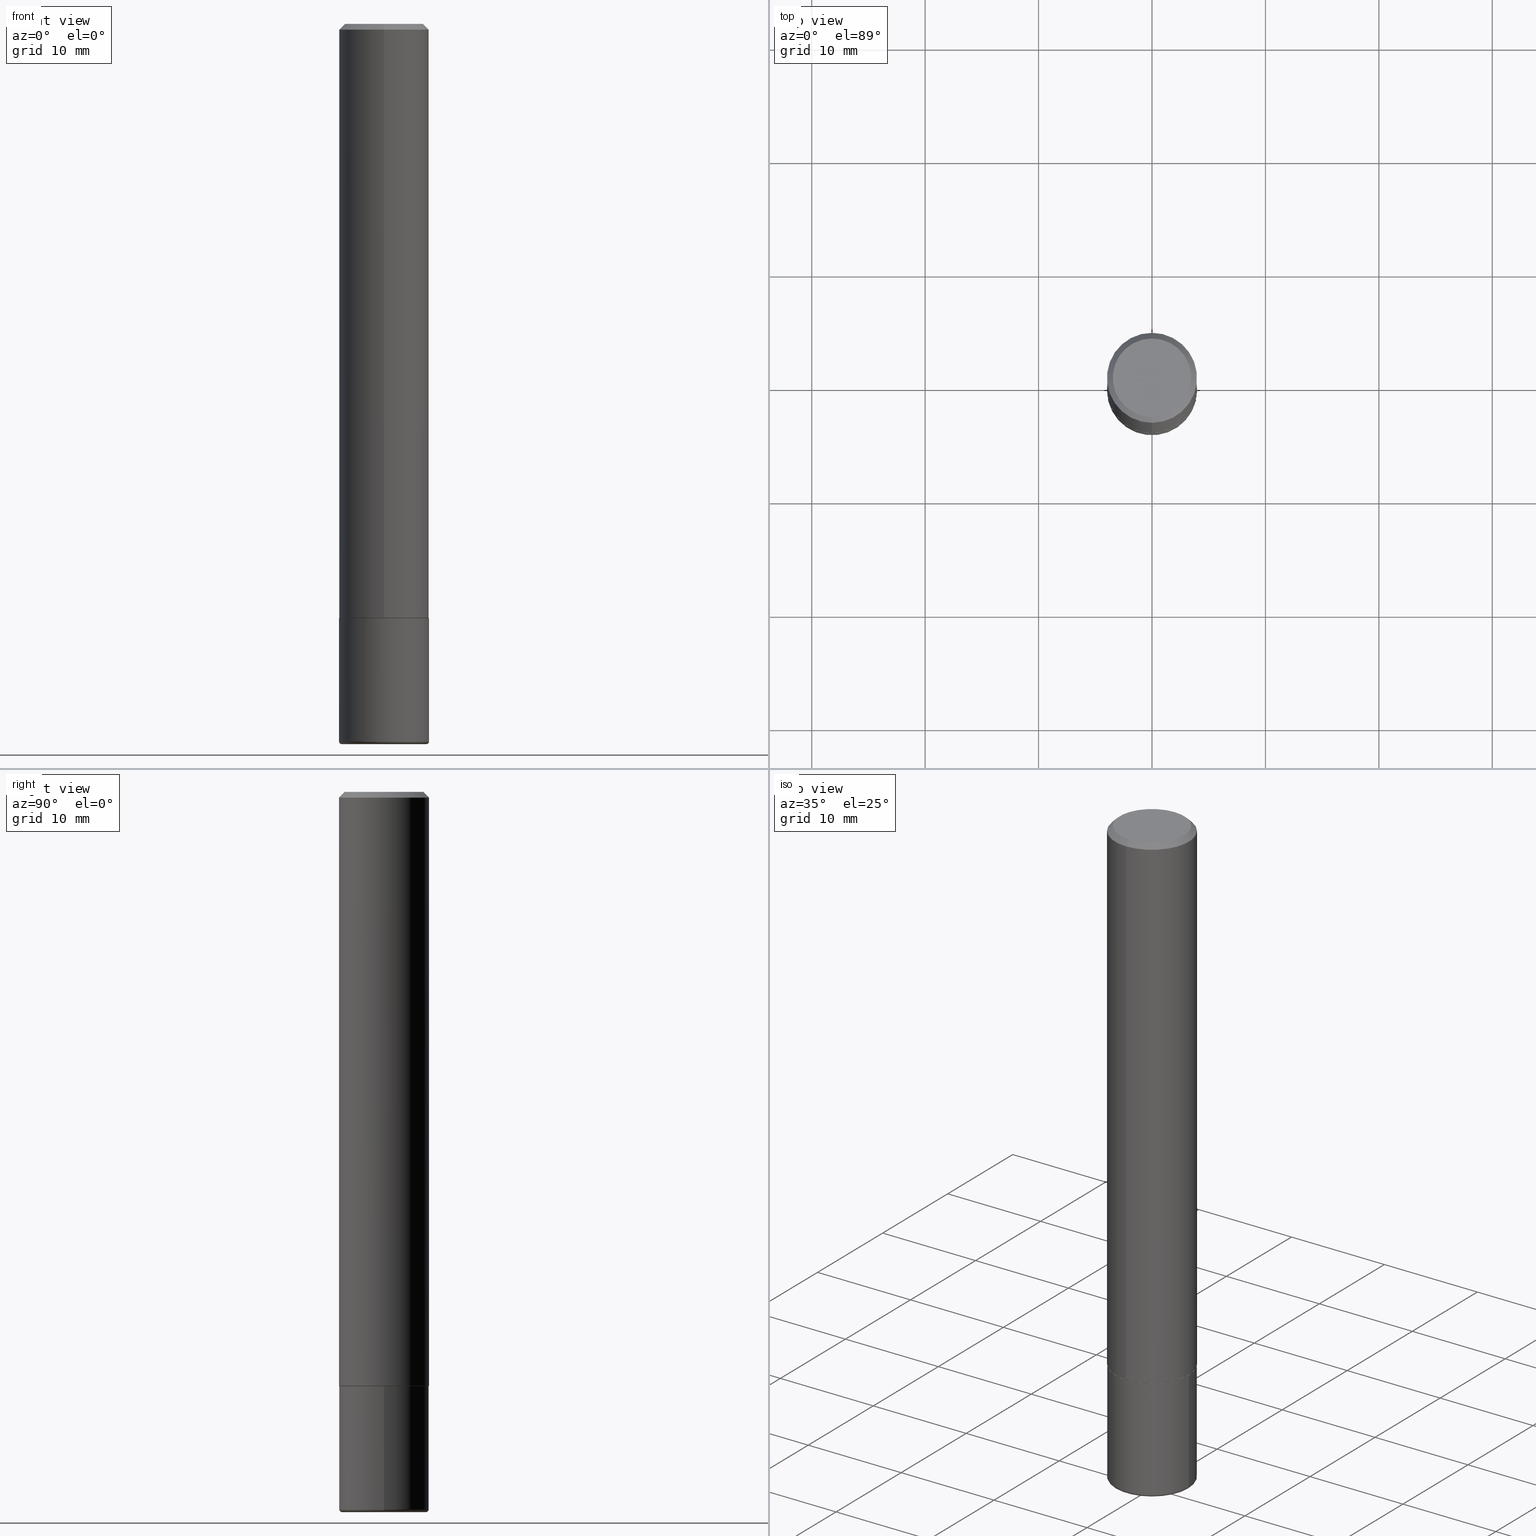
[diagram: canonical four-view strip — front | top / right | iso, engineering-drawing reading convention]
A machine part, canonical four-view strip (front | top / right | iso — engineering-drawing reading convention). The complete STEP part file that produces these views, byte-faithful:
ISO-10303-21;
HEADER;
FILE_DESCRIPTION (( 'STEP AP203' ),
    '1' );
FILE_NAME ('38798.STEP',
    '2024-03-03T13:20:27',
    ( '' ),
    ( '' ),
    'SwSTEP 2.0',
    'SolidWorks 2023',
    '' );
FILE_SCHEMA (( 'CONFIG_CONTROL_DESIGN' ));
ENDSEC;

DATA;
#1 = CC_DESIGN_PERSON_AND_ORGANIZATION_ASSIGNMENT ( #112, #179, ( #232 ) ) ;
#2 = AXIS2_PLACEMENT_3D ( 'NONE', #417, #358, #94 ) ;
#3 = DIRECTION ( 'NONE',  ( -2.446018690506352373E-29, 3.490693873197692271E-15, 1.000000000000000000 ) ) ;
#4 = ADVANCED_FACE ( 'NONE', ( #355 ), #65, .F. ) ;
#5 = EDGE_CURVE ( 'NONE', #220, #170, #373, .T. ) ;
#6 = DIRECTION ( 'NONE',  ( -2.446018690506352654E-29, 3.490693873197692271E-15, 1.000000000000000000 ) ) ;
#7 = APPLICATION_CONTEXT ( 'configuration controlled 3d designs of mechanical parts and assemblies' ) ;
#8 = FACE_OUTER_BOUND ( 'NONE', #368, .T. ) ;
#9 = DIRECTION ( 'NONE',  ( 4.937700262164542520E-15, 0.7071067811865443531, -0.7071067811865506814 ) ) ;
#10 = CIRCLE ( 'NONE', #242, 0.009999999999999790307 ) ;
#11 = AXIS2_PLACEMENT_3D ( 'NONE', #48, #378, #22 ) ;
#12 = DIRECTION ( 'NONE',  ( 2.446018690506352654E-29, -3.490693873197692271E-15, -1.000000000000000000 ) ) ;
#13 = VERTEX_POINT ( 'NONE', #221 ) ;
#14 = ORIENTED_EDGE ( 'NONE', *, *, #351, .F. ) ;
#15 = EDGE_CURVE ( 'NONE', #170, #217, #10, .T. ) ;
#16 = CC_DESIGN_APPROVAL ( #354, ( #232 ) ) ;
#17 = VERTEX_POINT ( 'NONE', #290 ) ;
#18 = AXIS2_PLACEMENT_3D ( 'NONE', #178, #280, #88 ) ;
#19 = ORIENTED_EDGE ( 'NONE', *, *, #187, .F. ) ;
#20 = CARTESIAN_POINT ( 'NONE',  ( 5.044913549169352611E-29, -7.199556113470241419E-15, -2.062500000000000000 ) ) ;
#21 = DIRECTION ( 'NONE',  ( -2.445468806185136597E-29, 3.491481338843145583E-15, 1.000000000000000000 ) ) ;
#22 = DIRECTION ( 'NONE',  ( 1.000000000000000000, -6.982962677686265922E-15, 4.883557194083112340E-29 ) ) ;
#23 = COORDINATED_UNIVERSAL_TIME_OFFSET ( 5, 0, .BEHIND. ) ;
#24 = CARTESIAN_POINT ( 'NONE',  ( -0.1562500000000000000, 1.110223024625156540E-15, -7.685836078523291160E-30 ) ) ;
#25 = CC_DESIGN_DATE_AND_TIME_ASSIGNMENT ( #267, #106, ( #366 ) ) ;
#26 = ORIENTED_EDGE ( 'NONE', *, *, #262, .F. ) ;
#27 = DIRECTION ( 'NONE',  ( 1.000000000000000000, -6.982962677686266711E-15, 4.876176775795936353E-29 ) ) ;
#28 = PERSON ( 'UNSPECIFIED', 'UNSPECIFIED', 'UNSPECIFIED', ('UNSPECIFIED'), ('UNSPECIFIED'), ('UNSPECIFIED') ) ;
#29 = CIRCLE ( 'NONE', #231, 0.1562500000000002498 ) ;
#30 = DIRECTION ( 'NONE',  ( 7.105427357601001859E-15, 1.000000000000000000, -3.491481338843145583E-15 ) ) ;
#31 = CARTESIAN_POINT ( 'NONE',  ( 1.091087918388479765E-15, 0.1562499999999999722, -0.02000000000000057981 ) ) ;
#32 = EDGE_CURVE ( 'NONE', #17, #387, #66, .T. ) ;
#33 = LENGTH_MEASURE_WITH_UNIT ( LENGTH_MEASURE( 0.02539999999999999897 ), #75 );
#34 = CARTESIAN_POINT ( 'NONE',  ( 5.042467530478845729E-29, -7.196065419597043772E-15, -2.061500000000000110 ) ) ;
#35 = CARTESIAN_POINT ( 'NONE',  ( 6.089217327400989947E-29, -8.693788533719431716E-15, -2.489999999999999769 ) ) ;
#36 = APPROVAL ( #261, 'UNSPECIFIED' ) ;
#37 = PERSON_AND_ORGANIZATION ( #28, #39 ) ;
#38 = DIRECTION ( 'NONE',  ( 2.446018690506352373E-29, -3.490693873197692271E-15, -1.000000000000000000 ) ) ;
#39 = ORGANIZATION ( 'UNSPECIFIED', 'UNSPECIFIED', '' ) ;
#40 = DESIGN_CONTEXT ( 'detailed design', #71, 'design' ) ;
#41 = MANIFOLD_SOLID_BREP ( 'Body-Move/Copy2[1]', #99 ) ;
#42 = AXIS2_PLACEMENT_3D ( 'NONE', #141, #276, #344 ) ;
#43 = CARTESIAN_POINT ( 'NONE',  ( -0.1562500000000000000, -6.837261372916553606E-15, -2.062500000000000000 ) ) ;
#44 = EDGE_CURVE ( 'NONE', #83, #370, #68, .T. ) ;
#45 = ORIENTED_EDGE ( 'NONE', *, *, #332, .T. ) ;
#46 = VERTEX_POINT ( 'NONE', #78 ) ;
#47 = DIRECTION ( 'NONE',  ( -6.982962677686266711E-15, -1.000000000000000000, 3.496765431890256131E-15 ) ) ;
#48 = CARTESIAN_POINT ( 'NONE',  ( 6.089217327400989947E-29, -8.693788533719431716E-15, -2.489999999999999769 ) ) ;
#49 = CARTESIAN_POINT ( 'NONE',  ( -0.1462500000000000189, -7.636550052576496041E-15, -2.499999999999999556 ) ) ;
#50 = CONICAL_SURFACE ( 'NONE', #76, 0.1552499999999999991, 0.7853981633975336552 ) ;
#51 = EDGE_LOOP ( 'NONE', ( #410, #345, #171, #321 ) ) ;
#52 = FACE_OUTER_BOUND ( 'NONE', #119, .T. ) ;
#53 = APPLICATION_PROTOCOL_DEFINITION ( 'international standard', 'config_control_design', 1994, #7 ) ;
#54 = VERTEX_POINT ( 'NONE', #331 ) ;
#55 = CARTESIAN_POINT ( 'NONE',  ( 5.043779412756844791E-29, -7.201180261363988578E-15, -2.062500000000000000 ) ) ;
#56 = ORIENTED_EDGE ( 'NONE', *, *, #351, .T. ) ;
#57 = DIRECTION ( 'NONE',  ( -2.445468806185136877E-29, 3.491481338843145188E-15, 1.000000000000000000 ) ) ;
#58 = APPROVAL ( #329, 'UNSPECIFIED' ) ;
#59 = CIRCLE ( 'NONE', #293, 0.1562500000000000000 ) ;
#60 = APPROVAL_PERSON_ORGANIZATION ( #121, #354, #379 ) ;
#61 = ORIENTED_EDGE ( 'NONE', *, *, #150, .F. ) ;
#62 = CALENDAR_DATE ( 2024, 3, 3 ) ;
#63 = VERTEX_POINT ( 'NONE', #43 ) ;
#64 = DIRECTION ( 'NONE',  ( -6.982962677686266711E-15, -1.000000000000000000, 3.490693873197693060E-15 ) ) ;
#65 = PLANE ( 'NONE',  #342 ) ;
#66 = CIRCLE ( 'NONE', #2, 0.1362500000000000377 ) ;
#67 = CONICAL_SURFACE ( 'NONE', #384, 0.1562500000000000278, 0.7853981633974472798 ) ;
#68 = LINE ( 'NONE', #103, #114 ) ;
#69 = DIRECTION ( 'NONE',  ( -6.982962677686265922E-15, -1.000000000000000000, 3.496765431890251398E-15 ) ) ;
#70 = CARTESIAN_POINT ( 'NONE',  ( 1.091087918388479765E-15, 0.1562499999999999722, -0.02000000000000057981 ) ) ;
#71 = APPLICATION_CONTEXT ( 'configuration controlled 3d designs of mechanical parts and assemblies' ) ;
#72 = AXIS2_PLACEMENT_3D ( 'NONE', #371, #6, #64 ) ;
#73 = ORIENTED_EDGE ( 'NONE', *, *, #326, .T. ) ;
#74 = DIRECTION ( 'NONE',  ( -2.446018690506352654E-29, 3.490693873197692271E-15, 1.000000000000000000 ) ) ;
#75 =( LENGTH_UNIT ( ) NAMED_UNIT ( * ) SI_UNIT ( $, .METRE. ) );
#76 = AXIS2_PLACEMENT_3D ( 'NONE', #20, #208, #346 ) ;
#77 = ORIENTED_EDGE ( 'NONE', *, *, #118, .F. ) ;
#78 = CARTESIAN_POINT ( 'NONE',  ( -1.071952812151801412E-15, -0.1562500000000001110, -0.01999999999999948694 ) ) ;
#79 = EDGE_CURVE ( 'NONE', #13, #134, #203, .T. ) ;
#80 = DIRECTION ( 'NONE',  ( -6.982962677686265922E-15, -1.000000000000000000, 3.490693873197692271E-15 ) ) ;
#81 = ORIENTED_EDGE ( 'NONE', *, *, #118, .T. ) ;
#82 = FACE_OUTER_BOUND ( 'NONE', #108, .T. ) ;
#83 = VERTEX_POINT ( 'NONE', #303 ) ;
#84 = DIRECTION ( 'NONE',  ( -2.446018690506352654E-29, 3.490693873197692271E-15, 1.000000000000000000 ) ) ;
#85 = CIRCLE ( 'NONE', #191, 0.1562500000000000000 ) ;
#86 = DIRECTION ( 'NONE',  ( -2.446018690506352654E-29, 3.490693873197692271E-15, 1.000000000000000000 ) ) ;
#87 = CYLINDRICAL_SURFACE ( 'NONE', #100, 0.1562500000000000000 ) ;
#88 = DIRECTION ( 'NONE',  ( 6.982962677686266711E-15, 1.000000000000000000, -3.496765431890256131E-15 ) ) ;
#89 = CARTESIAN_POINT ( 'NONE',  ( 5.044913549169352611E-29, -7.199556113470241419E-15, -2.062500000000000000 ) ) ;
#90 = EDGE_LOOP ( 'NONE', ( #137, #186, #416, #202 ) ) ;
#91 = AXIS2_PLACEMENT_3D ( 'NONE', #245, #284, #372 ) ;
#92 = ORIENTED_EDGE ( 'NONE', *, *, #44, .T. ) ;
#93 = ORIENTED_EDGE ( 'NONE', *, *, #187, .T. ) ;
#94 = DIRECTION ( 'NONE',  ( -6.982962677686266711E-15, -1.000000000000000000, 3.490693873197693060E-15 ) ) ;
#95 = AXIS2_PLACEMENT_3D ( 'NONE', #35, #128, #230 ) ;
#96 = PRODUCT_RELATED_PRODUCT_CATEGORY ( 'detail', '', ( #211 ) ) ;
#97 = PLANE ( 'NONE',  #359 ) ;
#98 = EDGE_CURVE ( 'NONE', #63, #54, #59, .T. ) ;
#99 = CLOSED_SHELL ( 'NONE', ( #237, #149, #4, #246, #356, #224 ) ) ;
#100 = AXIS2_PLACEMENT_3D ( 'NONE', #283, #382, #27 ) ;
#101 = PLANE ( 'NONE',  #271 ) ;
#102 = PRODUCT_DEFINITION_SHAPE ( 'NONE', 'NONE',  #409 ) ;
#103 = CARTESIAN_POINT ( 'NONE',  ( -1.084104955710742475E-15, -0.1552500000000072156, -2.062499999999999556 ) ) ;
#104 = CC_DESIGN_PERSON_AND_ORGANIZATION_ASSIGNMENT ( #398, #275, ( #232 ) ) ;
#105 = PERSON_AND_ORGANIZATION ( #28, #39 ) ;
#106 = DATE_TIME_ROLE ( 'classification_date' ) ;
#107 =( NAMED_UNIT ( * ) PLANE_ANGLE_UNIT ( ) SI_UNIT ( $, .RADIAN. ) );
#108 = EDGE_LOOP ( 'NONE', ( #212, #239 ) ) ;
#109 = SECURITY_CLASSIFICATION_LEVEL ( 'unclassified' ) ;
#110 = CARTESIAN_POINT ( 'NONE',  ( -1.091087918388479962E-15, -0.1562500000000001388, 5.454209176871399228E-16 ) ) ;
#111 = ADVANCED_FACE ( 'NONE', ( #148 ), #126, .T. ) ;
#112 = PERSON_AND_ORGANIZATION ( #28, #39 ) ;
#113 = ORIENTED_EDGE ( 'NONE', *, *, #392, .F. ) ;
#114 = VECTOR ( 'NONE', #363, 39.37007874015748143 ) ;
#115 = APPROVAL_STATUS ( 'not_yet_approved' ) ;
#116 = ORIENTED_EDGE ( 'NONE', *, *, #5, .T. ) ;
#117 = ORIENTED_EDGE ( 'NONE', *, *, #341, .T. ) ;
#118 = EDGE_CURVE ( 'NONE', #312, #217, #181, .T. ) ;
#119 = EDGE_LOOP ( 'NONE', ( #348, #249, #117, #352 ) ) ;
#120 = AXIS2_PLACEMENT_3D ( 'NONE', #34, #260, #158 ) ;
#121 = PERSON_AND_ORGANIZATION ( #28, #39 ) ;
#122 = CIRCLE ( 'NONE', #265, 0.1562500000000000278 ) ;
#123 = APPROVAL_PERSON_ORGANIZATION ( #198, #58, #250 ) ;
#124 = EDGE_LOOP ( 'NONE', ( #81, #147, #14, #176 ) ) ;
#125 = DIRECTION ( 'NONE',  ( -6.982962677686265922E-15, -1.000000000000000000, 3.519288880726909138E-15 ) ) ;
#126 = CONICAL_SURFACE ( 'NONE', #390, 0.1552499999999999991, 0.7853981633975336552 ) ;
#127 = CC_DESIGN_APPROVAL ( #58, ( #366 ) ) ;
#128 = DIRECTION ( 'NONE',  ( -2.445468806185136597E-29, 3.491481338843145583E-15, 1.000000000000000000 ) ) ;
#129 = PERSON_AND_ORGANIZATION ( #28, #39 ) ;
#130 = CARTESIAN_POINT ( 'NONE',  ( 9.514286648347541549E-16, 0.1362500000000000377, -4.756606863202822775E-16 ) ) ;
#131 = DIRECTION ( 'NONE',  ( 2.438088387897960049E-29, -3.491481338843145188E-15, -1.000000000000000000 ) ) ;
#132 = CARTESIAN_POINT ( 'NONE',  ( 6.113672015462840371E-29, -8.728703347107863365E-15, -2.499999999999999556 ) ) ;
#133 = ADVANCED_FACE ( 'NONE', ( #292 ), #97, .F. ) ;
#134 = VERTEX_POINT ( 'NONE', #70 ) ;
#135 = CARTESIAN_POINT ( 'NONE',  ( 1.110223024625157329E-15, 0.1562500000000001388, -5.454209176871399228E-16 ) ) ;
#136 = CC_DESIGN_PERSON_AND_ORGANIZATION_ASSIGNMENT ( #37, #296, ( #211 ) ) ;
#137 = ORIENTED_EDGE ( 'NONE', *, *, #393, .T. ) ;
#138 = CC_DESIGN_PERSON_AND_ORGANIZATION_ASSIGNMENT ( #238, #375, ( #366 ) ) ;
#139 = ORIENTED_EDGE ( 'NONE', *, *, #263, .T. ) ;
#140 = EDGE_CURVE ( 'NONE', #17, #46, #194, .T. ) ;
#141 = CARTESIAN_POINT ( 'NONE',  ( 6.089217327400989947E-29, -8.693788533719431716E-15, -2.489999999999999769 ) ) ;
#142 = PERSON_AND_ORGANIZATION_ROLE ( 'creator' ) ;
#143 = DIRECTION ( 'NONE',  ( 2.438088387897960049E-29, -3.491481338843145188E-15, -1.000000000000000000 ) ) ;
#144 = DIRECTION ( 'NONE',  ( -2.446018690506352654E-29, 3.490693873197692271E-15, 1.000000000000000000 ) ) ;
#145 = ORIENTED_EDGE ( 'NONE', *, *, #32, .T. ) ;
#146 = DIRECTION ( 'NONE',  ( 1.000000000000000000, -6.982962677686269077E-15, 0.000000000000000000 ) ) ;
#147 = ORIENTED_EDGE ( 'NONE', *, *, #262, .T. ) ;
#148 = FACE_OUTER_BOUND ( 'NONE', #247, .T. ) ;
#149 = ADVANCED_FACE ( 'NONE', ( #8 ), #253, .T. ) ;
#150 = EDGE_CURVE ( 'NONE', #287, #83, #322, .T. ) ;
#151 = EDGE_CURVE ( 'NONE', #13, #370, #29, .T. ) ;
#152 = ORIENTED_EDGE ( 'NONE', *, *, #15, .T. ) ;
#153 = CARTESIAN_POINT ( 'NONE',  ( 6.089217327400989947E-29, -8.693788533719431716E-15, -2.489999999999999769 ) ) ;
#154 = AXIS2_PLACEMENT_3D ( 'NONE', #132, #337, #307 ) ;
#155 = LOCAL_TIME ( 8, 20, 27.00000000000000000, #264 ) ;
#156 = DIRECTION ( 'NONE',  ( -1.000000000000000000, 7.105427357600978193E-15, 0.000000000000000000 ) ) ;
#157 = DATE_AND_TIME ( #62, #294 ) ;
#158 = DIRECTION ( 'NONE',  ( -6.982962677686265922E-15, -1.000000000000000000, 3.496765431890251398E-15 ) ) ;
#159 = APPLICATION_PROTOCOL_DEFINITION ( 'international standard', 'config_control_design', 1994, #71 ) ;
#160 = DIRECTION ( 'NONE',  ( 6.982962677686265922E-15, 1.000000000000000000, -3.490693873197692271E-15 ) ) ;
#161 = AXIS2_PLACEMENT_3D ( 'NONE', #182, #185, #349 ) ;
#162 = DIRECTION ( 'NONE',  ( -4.851104656540958753E-15, -0.7071067811865492381, -0.7071067811865457964 ) ) ;
#163 = DIRECTION ( 'NONE',  ( 5.024295867788490741E-15, 0.7071067811866103003, 0.7071067811864847341 ) ) ;
#164 = CIRCLE ( 'NONE', #400, 0.1562500000000000278 ) ;
#165 = AXIS2_PLACEMENT_3D ( 'NONE', #192, #257, #125 ) ;
#166 = ORIENTED_EDGE ( 'NONE', *, *, #140, .F. ) ;
#167 = CARTESIAN_POINT ( 'NONE',  ( 0.1462500000000000189, -9.749961638719478451E-15, -2.499999999999999556 ) ) ;
#168 = APPROVAL_DATE_TIME ( #196, #36 ) ;
#169 =( NAMED_UNIT ( * ) SI_UNIT ( $, .STERADIAN. ) SOLID_ANGLE_UNIT ( ) );
#170 = VERTEX_POINT ( 'NONE', #49 ) ;
#171 = ORIENTED_EDGE ( 'NONE', *, *, #251, .T. ) ;
#172 = CARTESIAN_POINT ( 'NONE',  ( 1.103117597267605822E-15, 0.1552499999999928104, -2.062500000000000888 ) ) ;
#173 = CARTESIAN_POINT ( 'NONE',  ( -1.091087918388430264E-15, -0.1562500000000074385, -2.061499999999999666 ) ) ;
#174 = APPROVAL_DATE_TIME ( #157, #354 ) ;
#175 = VECTOR ( 'NONE', #401, 39.37007874015748143 ) ;
#176 = ORIENTED_EDGE ( 'NONE', *, *, #381, .F. ) ;
#177 = DIRECTION ( 'NONE',  ( -1.000000000000000000, 6.982962677686265922E-15, -4.876176775795935793E-29 ) ) ;
#178 = CARTESIAN_POINT ( 'NONE',  ( 4.892037381012713785E-31, -6.981387746395396129E-17, -0.02000000000000003511 ) ) ;
#179 = PERSON_AND_ORGANIZATION_ROLE ( 'design_supplier' ) ;
#180 = COORDINATED_UNIVERSAL_TIME_OFFSET ( 5, 0, .BEHIND. ) ;
#181 = CIRCLE ( 'NONE', #200, 0.1562500000000000000 ) ;
#182 = CARTESIAN_POINT ( 'NONE',  ( 0.000000000000000000, 0.000000000000000000, 0.000000000000000000 ) ) ;
#183 = CC_DESIGN_APPROVAL ( #36, ( #409 ) ) ;
#184 = MANIFOLD_SOLID_BREP ( 'Body-Move/Copy2[2]', #288 ) ;
#185 = DIRECTION ( 'NONE',  ( -2.445468806185136597E-29, 3.491481338843145583E-15, 1.000000000000000000 ) ) ;
#186 = ORIENTED_EDGE ( 'NONE', *, *, #79, .T. ) ;
#187 = EDGE_CURVE ( 'NONE', #134, #46, #164, .T. ) ;
#188 = EDGE_CURVE ( 'NONE', #287, #13, #301, .T. ) ;
#189 = CARTESIAN_POINT ( 'NONE',  ( 5.043779412756844791E-29, -7.201180261363988578E-15, -2.062500000000000000 ) ) ;
#190 = AXIS2_PLACEMENT_3D ( 'NONE', #404, #244, #258 ) ;
#191 = AXIS2_PLACEMENT_3D ( 'NONE', #55, #21, #146 ) ;
#192 = CARTESIAN_POINT ( 'NONE',  ( 5.044913549169352611E-29, -7.199556113470241419E-15, -2.062500000000000000 ) ) ;
#193 = CARTESIAN_POINT ( 'NONE',  ( 1.021258291611616861E-15, 0.1362500000000000377, -4.757143324173787538E-16 ) ) ;
#194 = LINE ( 'NONE', #327, #360 ) ;
#195 = LOCAL_TIME ( 8, 20, 27.00000000000000000, #365 ) ;
#196 = DATE_AND_TIME ( #361, #155 ) ;
#197 = ADVANCED_BREP_SHAPE_REPRESENTATION ( '38798', ( #41, #184, #412 ), #415 ) ;
#198 = PERSON_AND_ORGANIZATION ( #28, #39 ) ;
#199 = EDGE_LOOP ( 'NONE', ( #300, #272, #252, #215 ) ) ;
#200 = AXIS2_PLACEMENT_3D ( 'NONE', #153, #406, #228 ) ;
#201 = AXIS2_PLACEMENT_3D ( 'NONE', #339, #364, #80 ) ;
#202 = ORIENTED_EDGE ( 'NONE', *, *, #332, .F. ) ;
#203 = LINE ( 'NONE', #135, #175 ) ;
#204 = CALENDAR_DATE ( 2024, 3, 3 ) ;
#205 = PLANE ( 'NONE',  #350 ) ;
#206 = DIRECTION ( 'NONE',  ( -2.445468806185136597E-29, 3.491481338843145583E-15, 1.000000000000000000 ) ) ;
#207 = CIRCLE ( 'NONE', #42, 0.1562500000000000000 ) ;
#208 = DIRECTION ( 'NONE',  ( -2.446018690506352654E-29, 3.490693873197692271E-15, 1.000000000000000000 ) ) ;
#209 = DIMENSIONAL_EXPONENTS ( 1.000000000000000000, 0.000000000000000000, 0.000000000000000000, 0.000000000000000000, 0.000000000000000000, 0.000000000000000000, 0.000000000000000000 ) ;
#210 = CC_DESIGN_DATE_AND_TIME_ASSIGNMENT ( #309, #403, ( #409 ) ) ;
#211 = PRODUCT ( '38798', '38798', '', ( #310 ) ) ;
#212 = ORIENTED_EDGE ( 'NONE', *, *, #5, .F. ) ;
#213 = CYLINDRICAL_SURFACE ( 'NONE', #161, 0.1562500000000000000 ) ;
#214 = CARTESIAN_POINT ( 'NONE',  ( 0.1562500000000000000, -1.091087918388479174E-15, 7.619026212181150377E-30 ) ) ;
#215 = ORIENTED_EDGE ( 'NONE', *, *, #44, .F. ) ;
#216 = CIRCLE ( 'NONE', #223, 0.009999999999999790307 ) ;
#217 = VERTEX_POINT ( 'NONE', #399 ) ;
#218 = ADVANCED_FACE ( 'NONE', ( #367 ), #67, .T. ) ;
#219 = DIRECTION ( 'NONE',  ( -6.982962677686265922E-15, -1.000000000000000000, 3.519288880726909138E-15 ) ) ;
#220 = VERTEX_POINT ( 'NONE', #167 ) ;
#221 = CARTESIAN_POINT ( 'NONE',  ( 1.110223024625183362E-15, 0.1562499999999930334, -2.061500000000000554 ) ) ;
#222 = DIRECTION ( 'NONE',  ( -2.446018690506352654E-29, 3.490693873197692271E-15, 1.000000000000000000 ) ) ;
#223 = AXIS2_PLACEMENT_3D ( 'NONE', #317, #285, #408 ) ;
#224 = ADVANCED_FACE ( 'NONE', ( #82 ), #205, .T. ) ;
#225 = FACE_OUTER_BOUND ( 'NONE', #386, .T. ) ;
#226 = FACE_OUTER_BOUND ( 'NONE', #353, .T. ) ;
#227 = APPROVAL_DATE_TIME ( #407, #58 ) ;
#228 = DIRECTION ( 'NONE',  ( 1.000000000000000000, -6.982962677686269077E-15, 0.000000000000000000 ) ) ;
#229 = ADVANCED_FACE ( 'NONE', ( #308 ), #50, .T. ) ;
#230 = DIRECTION ( 'NONE',  ( 1.000000000000000000, -6.982962677686265922E-15, 4.883557194083112340E-29 ) ) ;
#231 = AXIS2_PLACEMENT_3D ( 'NONE', #418, #222, #69 ) ;
#232 = PRODUCT_DEFINITION_FORMATION_WITH_SPECIFIED_SOURCE ( 'ANY', '', #211, .NOT_KNOWN. ) ;
#233 = CALENDAR_DATE ( 2024, 3, 3 ) ;
#234 = EDGE_LOOP ( 'NONE', ( #56, #362 ) ) ;
#235 = VECTOR ( 'NONE', #9, 39.37007874015748143 ) ;
#236 = ORIENTED_EDGE ( 'NONE', *, *, #151, .T. ) ;
#237 = ADVANCED_FACE ( 'NONE', ( #313 ), #87, .T. ) ;
#238 = PERSON_AND_ORGANIZATION ( #28, #39 ) ;
#239 = ORIENTED_EDGE ( 'NONE', *, *, #299, .F. ) ;
#240 = CARTESIAN_POINT ( 'NONE',  ( 4.892037381012713785E-31, -6.981387746395396129E-17, -0.02000000000000003511 ) ) ;
#241 = CARTESIAN_POINT ( 'NONE',  ( 0.000000000000000000, 0.000000000000000000, 0.000000000000000000 ) ) ;
#242 = AXIS2_PLACEMENT_3D ( 'NONE', #388, #30, #156 ) ;
#243 = VECTOR ( 'NONE', #57, 39.37007874015748143 ) ;
#244 = DIRECTION ( 'NONE',  ( -2.445468806185136597E-29, 3.491481338843145583E-15, 1.000000000000000000 ) ) ;
#245 = CARTESIAN_POINT ( 'NONE',  ( 0.000000000000000000, 0.000000000000000000, 0.000000000000000000 ) ) ;
#246 = ADVANCED_FACE ( 'NONE', ( #405 ), #213, .T. ) ;
#247 = EDGE_LOOP ( 'NONE', ( #289, #316, #92, #320 ) ) ;
#248 = LINE ( 'NONE', #214, #243 ) ;
#249 = ORIENTED_EDGE ( 'NONE', *, *, #140, .T. ) ;
#250 = APPROVAL_ROLE ( '' ) ;
#251 = EDGE_CURVE ( 'NONE', #220, #312, #216, .T. ) ;
#252 = ORIENTED_EDGE ( 'NONE', *, *, #393, .F. ) ;
#253 = TOROIDAL_SURFACE ( 'NONE', #95, 0.1462500000000000189, 0.009999999999999807654 ) ;
#254 = APPROVAL_PERSON_ORGANIZATION ( #129, #36, #394 ) ;
#255 = ORIENTED_EDGE ( 'NONE', *, *, #311, .T. ) ;
#256 = UNCERTAINTY_MEASURE_WITH_UNIT (LENGTH_MEASURE( 1.000000000000000082E-05 ), #395, 'distance_accuracy_value', 'NONE');
#257 = DIRECTION ( 'NONE',  ( -2.446018690506352654E-29, 3.490693873197692271E-15, 1.000000000000000000 ) ) ;
#258 = DIRECTION ( 'NONE',  ( 1.000000000000000000, -6.982962677686264344E-15, 0.000000000000000000 ) ) ;
#259 = DIRECTION ( 'NONE',  ( -6.982962677686265922E-15, -1.000000000000000000, 3.490693873197692271E-15 ) ) ;
#260 = DIRECTION ( 'NONE',  ( -2.446018690506352654E-29, 3.490693873197692271E-15, 1.000000000000000000 ) ) ;
#261 = APPROVAL_STATUS ( 'not_yet_approved' ) ;
#262 = EDGE_CURVE ( 'NONE', #217, #63, #319, .T. ) ;
#263 = EDGE_CURVE ( 'NONE', #387, #134, #279, .T. ) ;
#264 = COORDINATED_UNIVERSAL_TIME_OFFSET ( 5, 0, .BEHIND. ) ;
#265 = AXIS2_PLACEMENT_3D ( 'NONE', #377, #86, #347 ) ;
#266 = ORIENTED_EDGE ( 'NONE', *, *, #311, .F. ) ;
#267 = DATE_AND_TIME ( #297, #304 ) ;
#268 = ORIENTED_EDGE ( 'NONE', *, *, #79, .F. ) ;
#269 = CC_DESIGN_SECURITY_CLASSIFICATION ( #366, ( #232 ) ) ;
#270 = ADVANCED_FACE ( 'NONE', ( #226 ), #101, .F. ) ;
#271 = AXIS2_PLACEMENT_3D ( 'NONE', #130, #38, #160 ) ;
#272 = ORIENTED_EDGE ( 'NONE', *, *, #188, .T. ) ;
#273 = CARTESIAN_POINT ( 'NONE',  ( 4.892037381012713785E-31, -6.981387746395396129E-17, -0.02000000000000003511 ) ) ;
#274 = DIRECTION ( 'NONE',  ( 0.000000000000000000, 0.000000000000000000, 1.000000000000000000 ) ) ;
#275 = PERSON_AND_ORGANIZATION_ROLE ( 'creator' ) ;
#276 = DIRECTION ( 'NONE',  ( -2.445468806185136597E-29, 3.491481338843145583E-15, 1.000000000000000000 ) ) ;
#277 = DIRECTION ( 'NONE',  ( 1.000000000000000000, -6.982962677686269077E-15, 0.000000000000000000 ) ) ;
#278 = DIRECTION ( 'NONE',  ( -1.000000000000000000, 6.982962677686265922E-15, -4.876176775795935793E-29 ) ) ;
#279 = LINE ( 'NONE', #31, #235 ) ;
#280 = DIRECTION ( 'NONE',  ( 2.446018690506352654E-29, -3.490693873197692271E-15, -1.000000000000000000 ) ) ;
#281 = DIRECTION ( 'NONE',  ( 1.000000000000000000, 0.000000000000000000, 0.000000000000000000 ) ) ;
#282 = TOROIDAL_SURFACE ( 'NONE', #11, 0.1462500000000000189, 0.009999999999999807654 ) ;
#283 = CARTESIAN_POINT ( 'NONE',  ( 0.000000000000000000, 0.000000000000000000, 0.000000000000000000 ) ) ;
#284 = DIRECTION ( 'NONE',  ( -2.446018690506352654E-29, 3.490693873197692271E-15, 1.000000000000000000 ) ) ;
#285 = DIRECTION ( 'NONE',  ( -6.982962677686266711E-15, -1.000000000000000000, 3.491481338843145583E-15 ) ) ;
#286 = FACE_OUTER_BOUND ( 'NONE', #51, .T. ) ;
#287 = VERTEX_POINT ( 'NONE', #397 ) ;
#288 = CLOSED_SHELL ( 'NONE', ( #229, #325, #333, #218, #413, #111, #133, #270 ) ) ;
#289 = ORIENTED_EDGE ( 'NONE', *, *, #188, .F. ) ;
#290 = CARTESIAN_POINT ( 'NONE',  ( -1.003347832174086278E-15, -0.1362500000000000377, 4.754997480289927501E-16 ) ) ;
#291 = CYLINDRICAL_SURFACE ( 'NONE', #201, 0.1562500000000001388 ) ;
#292 = FACE_OUTER_BOUND ( 'NONE', #336, .T. ) ;
#293 = AXIS2_PLACEMENT_3D ( 'NONE', #369, #206, #277 ) ;
#294 = LOCAL_TIME ( 8, 20, 27.00000000000000000, #23 ) ;
#295 = DIRECTION ( 'NONE',  ( -2.446018690506352654E-29, 3.490693873197692271E-15, 1.000000000000000000 ) ) ;
#296 = PERSON_AND_ORGANIZATION_ROLE ( 'design_owner' ) ;
#297 = CALENDAR_DATE ( 2024, 3, 3 ) ;
#298 = CIRCLE ( 'NONE', #165, 0.1552499999999999991 ) ;
#299 = EDGE_CURVE ( 'NONE', #170, #220, #305, .T. ) ;
#300 = ORIENTED_EDGE ( 'NONE', *, *, #392, .T. ) ;
#301 = LINE ( 'NONE', #172, #414 ) ;
#302 = ORIENTED_EDGE ( 'NONE', *, *, #98, .F. ) ;
#303 = CARTESIAN_POINT ( 'NONE',  ( -1.084104955710742475E-15, -0.1552500000000072156, -2.062499999999999556 ) ) ;
#304 = LOCAL_TIME ( 8, 20, 27.00000000000000000, #180 ) ;
#305 = CIRCLE ( 'NONE', #154, 0.1462500000000000189 ) ;
#306 = ORIENTED_EDGE ( 'NONE', *, *, #381, .T. ) ;
#307 = DIRECTION ( 'NONE',  ( 1.000000000000000000, -6.982962677686264344E-15, 0.000000000000000000 ) ) ;
#308 = FACE_OUTER_BOUND ( 'NONE', #199, .T. ) ;
#309 = DATE_AND_TIME ( #204, #195 ) ;
#310 = MECHANICAL_CONTEXT ( 'NONE', #7, 'mechanical' ) ;
#311 = EDGE_CURVE ( 'NONE', #387, #17, #357, .T. ) ;
#312 = VERTEX_POINT ( 'NONE', #324 ) ;
#313 = FACE_OUTER_BOUND ( 'NONE', #124, .T. ) ;
#314 = FACE_OUTER_BOUND ( 'NONE', #90, .T. ) ;
#315 = VECTOR ( 'NONE', #411, 39.37007874015748143 ) ;
#316 = ORIENTED_EDGE ( 'NONE', *, *, #150, .T. ) ;
#317 = CARTESIAN_POINT ( 'NONE',  ( 0.1462500000000000189, -9.715046825331048380E-15, -2.489999999999999769 ) ) ;
#318 = CC_DESIGN_PERSON_AND_ORGANIZATION_ASSIGNMENT ( #105, #142, ( #409 ) ) ;
#319 = LINE ( 'NONE', #24, #315 ) ;
#320 = ORIENTED_EDGE ( 'NONE', *, *, #151, .F. ) ;
#321 = ORIENTED_EDGE ( 'NONE', *, *, #326, .F. ) ;
#322 = CIRCLE ( 'NONE', #343, 0.1552499999999999991 ) ;
#323 = DIRECTION ( 'NONE',  ( -6.982962677686265922E-15, -1.000000000000000000, 3.519288880726909138E-15 ) ) ;
#324 = CARTESIAN_POINT ( 'NONE',  ( 0.1562499999999999167, -9.784876452107911678E-15, -2.489999999999999769 ) ) ;
#325 = ADVANCED_FACE ( 'NONE', ( #314 ), #402, .T. ) ;
#326 = EDGE_CURVE ( 'NONE', #217, #312, #207, .T. ) ;
#327 = CARTESIAN_POINT ( 'NONE',  ( -1.071952812151801412E-15, -0.1562500000000001110, -0.01999999999999948694 ) ) ;
#328 = VECTOR ( 'NONE', #84, 39.37007874015748143 ) ;
#329 = APPROVAL_STATUS ( 'not_yet_approved' ) ;
#330 = DIRECTION ( 'NONE',  ( 6.982962677686266711E-15, 1.000000000000000000, -3.496765431890256131E-15 ) ) ;
#331 = CARTESIAN_POINT ( 'NONE',  ( 0.1562500000000000000, -8.292268179752468540E-15, -2.062500000000000000 ) ) ;
#332 = EDGE_CURVE ( 'NONE', #370, #46, #335, .T. ) ;
#333 = ADVANCED_FACE ( 'NONE', ( #52 ), #374, .T. ) ;
#334 = ORIENTED_EDGE ( 'NONE', *, *, #251, .F. ) ;
#335 = LINE ( 'NONE', #110, #328 ) ;
#336 = EDGE_LOOP ( 'NONE', ( #113, #61 ) ) ;
#337 = DIRECTION ( 'NONE',  ( -2.445468806185136597E-29, 3.491481338843145583E-15, 1.000000000000000000 ) ) ;
#338 = CARTESIAN_POINT ( 'NONE',  ( 1.263551563285417854E-28, 6.109479132827826125E-16, -2.500000000000000000 ) ) ;
#339 = CARTESIAN_POINT ( 'NONE',  ( 0.000000000000000000, 0.000000000000000000, 0.000000000000000000 ) ) ;
#340 = COORDINATED_UNIVERSAL_TIME_OFFSET ( 5, 0, .BEHIND. ) ;
#341 = EDGE_CURVE ( 'NONE', #46, #134, #122, .T. ) ;
#342 = AXIS2_PLACEMENT_3D ( 'NONE', #189, #143, #278 ) ;
#343 = AXIS2_PLACEMENT_3D ( 'NONE', #396, #295, #323 ) ;
#344 = DIRECTION ( 'NONE',  ( 1.000000000000000000, -6.982962677686269077E-15, 0.000000000000000000 ) ) ;
#345 = ORIENTED_EDGE ( 'NONE', *, *, #299, .T. ) ;
#346 = DIRECTION ( 'NONE',  ( -6.982962677686265922E-15, -1.000000000000000000, 3.519288880726909138E-15 ) ) ;
#347 = DIRECTION ( 'NONE',  ( -6.982962677686266711E-15, -1.000000000000000000, 3.496765431890256131E-15 ) ) ;
#348 = ORIENTED_EDGE ( 'NONE', *, *, #32, .F. ) ;
#349 = DIRECTION ( 'NONE',  ( 1.000000000000000000, -6.982962677686266711E-15, 4.876176775795936353E-29 ) ) ;
#350 = AXIS2_PLACEMENT_3D ( 'NONE', #338, #131, #177 ) ;
#351 = EDGE_CURVE ( 'NONE', #54, #63, #85, .T. ) ;
#352 = ORIENTED_EDGE ( 'NONE', *, *, #263, .F. ) ;
#353 = EDGE_LOOP ( 'NONE', ( #255, #145 ) ) ;
#354 = APPROVAL ( #115, 'UNSPECIFIED' ) ;
#355 = FACE_OUTER_BOUND ( 'NONE', #234, .T. ) ;
#356 = ADVANCED_FACE ( 'NONE', ( #286 ), #282, .T. ) ;
#357 = CIRCLE ( 'NONE', #72, 0.1362500000000000377 ) ;
#358 = DIRECTION ( 'NONE',  ( -2.446018690506352654E-29, 3.490693873197692271E-15, 1.000000000000000000 ) ) ;
#359 = AXIS2_PLACEMENT_3D ( 'NONE', #389, #3, #259 ) ;
#360 = VECTOR ( 'NONE', #162, 39.37007874015748143 ) ;
#361 = CALENDAR_DATE ( 2024, 3, 3 ) ;
#362 = ORIENTED_EDGE ( 'NONE', *, *, #98, .T. ) ;
#363 = DIRECTION ( 'NONE',  ( -4.937700262164969294E-15, -0.7071067811866054154, 0.7071067811864896191 ) ) ;
#364 = DIRECTION ( 'NONE',  ( -2.446018690506352654E-29, 3.490693873197692271E-15, 1.000000000000000000 ) ) ;
#365 = COORDINATED_UNIVERSAL_TIME_OFFSET ( 5, 0, .BEHIND. ) ;
#366 = SECURITY_CLASSIFICATION ( '', '', #109 ) ;
#367 = FACE_OUTER_BOUND ( 'NONE', #376, .T. ) ;
#368 = EDGE_LOOP ( 'NONE', ( #116, #152, #77, #334 ) ) ;
#369 = CARTESIAN_POINT ( 'NONE',  ( 5.043779412756844791E-29, -7.201180261363988578E-15, -2.062500000000000000 ) ) ;
#370 = VERTEX_POINT ( 'NONE', #173 ) ;
#371 = CARTESIAN_POINT ( 'NONE',  ( 2.624387123415071162E-48, -3.745242049114306587E-34, -1.072921941929966994E-19 ) ) ;
#372 = DIRECTION ( 'NONE',  ( -6.982962677686265922E-15, -1.000000000000000000, 3.490693873197692271E-15 ) ) ;
#373 = CIRCLE ( 'NONE', #190, 0.1462500000000000189 ) ;
#374 = CONICAL_SURFACE ( 'NONE', #18, 0.1562500000000000278, 0.7853981633974472798 ) ;
#375 = PERSON_AND_ORGANIZATION_ROLE ( 'classification_officer' ) ;
#376 = EDGE_LOOP ( 'NONE', ( #166, #266, #139, #93 ) ) ;
#377 = CARTESIAN_POINT ( 'NONE',  ( 4.892037381012713785E-31, -6.981387746395396129E-17, -0.02000000000000003511 ) ) ;
#378 = DIRECTION ( 'NONE',  ( -2.445468806185136597E-29, 3.491481338843145583E-15, 1.000000000000000000 ) ) ;
#379 = APPROVAL_ROLE ( '' ) ;
#380 = EDGE_LOOP ( 'NONE', ( #26, #73, #306, #302 ) ) ;
#381 = EDGE_CURVE ( 'NONE', #312, #54, #248, .T. ) ;
#382 = DIRECTION ( 'NONE',  ( -2.445468806185136597E-29, 3.491481338843145583E-15, 1.000000000000000000 ) ) ;
#383 = CIRCLE ( 'NONE', #120, 0.1562500000000002498 ) ;
#384 = AXIS2_PLACEMENT_3D ( 'NONE', #273, #12, #330 ) ;
#385 = LOCAL_TIME ( 8, 20, 27.00000000000000000, #340 ) ;
#386 = EDGE_LOOP ( 'NONE', ( #268, #236, #45, #19 ) ) ;
#387 = VERTEX_POINT ( 'NONE', #193 ) ;
#388 = CARTESIAN_POINT ( 'NONE',  ( -0.1462500000000000189, -7.654619782670285257E-15, -2.489999999999999769 ) ) ;
#389 = CARTESIAN_POINT ( 'NONE',  ( 5.044913549169352611E-29, -7.199556113470241419E-15, -2.062500000000000000 ) ) ;
#390 = AXIS2_PLACEMENT_3D ( 'NONE', #89, #144, #219 ) ;
#391 = SHAPE_DEFINITION_REPRESENTATION ( #102, #197 ) ;
#392 = EDGE_CURVE ( 'NONE', #83, #287, #298, .T. ) ;
#393 = EDGE_CURVE ( 'NONE', #370, #13, #383, .T. ) ;
#394 = APPROVAL_ROLE ( '' ) ;
#395 =( CONVERSION_BASED_UNIT ( 'INCH', #33 ) LENGTH_UNIT ( ) NAMED_UNIT ( #209 ) );
#396 = CARTESIAN_POINT ( 'NONE',  ( 5.044913549169352611E-29, -7.199556113470241419E-15, -2.062500000000000000 ) ) ;
#397 = CARTESIAN_POINT ( 'NONE',  ( 1.106670310946407312E-15, 0.1552499999999928104, -2.062500000000000888 ) ) ;
#398 = PERSON_AND_ORGANIZATION ( #28, #39 ) ;
#399 = CARTESIAN_POINT ( 'NONE',  ( -0.1562499999999999167, -7.583565509094276753E-15, -2.489999999999999769 ) ) ;
#400 = AXIS2_PLACEMENT_3D ( 'NONE', #240, #74, #47 ) ;
#401 = DIRECTION ( 'NONE',  ( -2.446018690506352654E-29, 3.490693873197692271E-15, 1.000000000000000000 ) ) ;
#402 = CYLINDRICAL_SURFACE ( 'NONE', #91, 0.1562500000000001388 ) ;
#403 = DATE_TIME_ROLE ( 'creation_date' ) ;
#404 = CARTESIAN_POINT ( 'NONE',  ( 6.113672015462840371E-29, -8.728703347107863365E-15, -2.499999999999999556 ) ) ;
#405 = FACE_OUTER_BOUND ( 'NONE', #380, .T. ) ;
#406 = DIRECTION ( 'NONE',  ( -2.445468806185136597E-29, 3.491481338843145583E-15, 1.000000000000000000 ) ) ;
#407 = DATE_AND_TIME ( #233, #385 ) ;
#408 = DIRECTION ( 'NONE',  ( 1.000000000000000000, -6.982962677686284854E-15, 0.000000000000000000 ) ) ;
#409 = PRODUCT_DEFINITION ( 'UNKNOWN', '', #232, #40 ) ;
#410 = ORIENTED_EDGE ( 'NONE', *, *, #15, .F. ) ;
#411 = DIRECTION ( 'NONE',  ( -2.445468806185136877E-29, 3.491481338843145188E-15, 1.000000000000000000 ) ) ;
#412 = AXIS2_PLACEMENT_3D ( 'NONE', #241, #274, #281 ) ;
#413 = ADVANCED_FACE ( 'NONE', ( #225 ), #291, .T. ) ;
#414 = VECTOR ( 'NONE', #163, 39.37007874015748143 ) ;
#415 =( GEOMETRIC_REPRESENTATION_CONTEXT ( 3 ) GLOBAL_UNCERTAINTY_ASSIGNED_CONTEXT ( ( #256 ) ) GLOBAL_UNIT_ASSIGNED_CONTEXT ( ( #395, #107, #169 ) ) REPRESENTATION_CONTEXT ( 'NONE', 'WORKASPACE' ) );
#416 = ORIENTED_EDGE ( 'NONE', *, *, #341, .F. ) ;
#417 = CARTESIAN_POINT ( 'NONE',  ( 2.624387123415071162E-48, -3.745242049114306587E-34, -1.072921941929966994E-19 ) ) ;
#418 = CARTESIAN_POINT ( 'NONE',  ( 5.042467530478845729E-29, -7.196065419597043772E-15, -2.061500000000000110 ) ) ;
ENDSEC;
END-ISO-10303-21;
